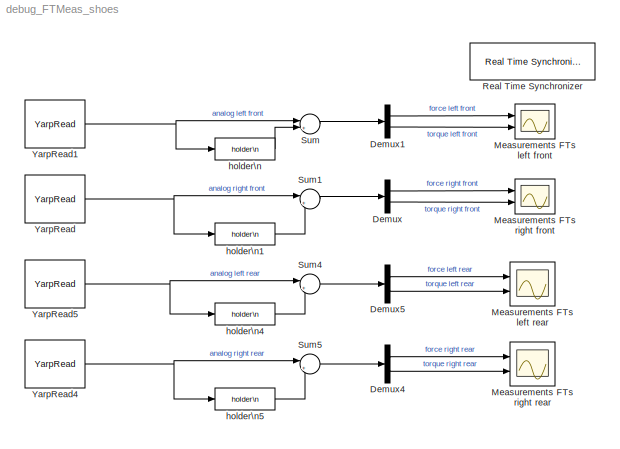
MODEL debug_FTMeas_shoes
KIND model
CONFIG InitFcn = ROBOT_DOF=23;
BLOCK [Demux] Demux
  Outputs = 2
  Ports = [1, 2]
  SID = 18
BLOCK [Demux] Demux1
  Outputs = 2
  Ports = [1, 2]
  SID = 19
BLOCK [Demux] Demux4
  Outputs = 2
  Ports = [1, 2]
  SID = 34
BLOCK [Demux] Demux5
  Outputs = 2
  Ports = [1, 2]
  SID = 35
BLOCK [Scope] Measurements FTs left front
  Floating = off
  NumInputPorts = 2
  Ports = [2]
  SID = 51
  ScopeSpecificationString = Simulink.scopes.TimeScopeBlockCfg('CurrentConfiguration', extmgr.ConfigurationSet(extmgr.Configuration('Core','General UI',true),extmgr.Configuration('Core','Source UI',true),extmgr.Configuration('Sources','WiredSimulink',true,'DataLoggingVariableName','ScopeData2'),extmgr.Configuration('Visuals','Time Domain',true,'SerializedDisplays',{struct('MinYLimReal','-19.48535','MaxYLimReal','29.67908','YL...<+2291ch>
BLOCK [Scope] Measurements FTs left rear
  Floating = off
  NumInputPorts = 2
  Ports = [2]
  SID = 43
  ScopeSpecificationString = Simulink.scopes.TimeScopeBlockCfg('CurrentConfiguration', extmgr.ConfigurationSet(extmgr.Configuration('Core','General UI',true),extmgr.Configuration('Core','Source UI',true),extmgr.Configuration('Sources','WiredSimulink',true,'DataLoggingVariableName','ScopeData1'),extmgr.Configuration('Visuals','Time Domain',true,'SerializedDisplays',{struct('MinYLimReal','-19.48535','MaxYLimReal','29.67908','YL...<+2291ch>
BLOCK [Scope] Measurements FTs right front
  Floating = off
  NumInputPorts = 2
  Ports = [2]
  SID = 50
  ScopeSpecificationString = Simulink.scopes.TimeScopeBlockCfg('CurrentConfiguration', extmgr.ConfigurationSet(extmgr.Configuration('Core','General UI',true),extmgr.Configuration('Core','Source UI',true),extmgr.Configuration('Sources','WiredSimulink',true),extmgr.Configuration('Visuals','Time Domain',true,'SerializedDisplays',{struct('MinYLimReal','-19.48535','MaxYLimReal','29.67908','YLabelReal','','MinYLimMag','0.00000','Ma...<+2252ch>
BLOCK [Scope] Measurements FTs right rear
  Floating = off
  NumInputPorts = 2
  Ports = [2]
  SID = 47
  ScopeSpecificationString = Simulink.scopes.TimeScopeBlockCfg('CurrentConfiguration', extmgr.ConfigurationSet(extmgr.Configuration('Core','General UI',true),extmgr.Configuration('Core','Source UI',true),extmgr.Configuration('Sources','WiredSimulink',true,'DataLoggingVariableName','ScopeData4'),extmgr.Configuration('Visuals','Time Domain',true,'SerializedDisplays',{struct('MinYLimReal','-19.48535','MaxYLimReal','29.67908','YL...<+2291ch>
BLOCK [Reference] Real Time Synchronizer  REF=WBToolboxLibrary/Utilities/Real Time Synchronizer
  MultiThreadCoSim = auto
  Ports = []
  SID = 16
  SourceBlock = WBToolboxLibrary/Utilities/Real Time Synchronizer
  SourceProductName = WholeBodyToolbox
  SourceType = Real Time Synchronizer
  period = 0.01
BLOCK [Sum] Sum
  Inputs = |+-
  Ports = [2, 1]
  SID = 21
BLOCK [Sum] Sum1
  Inputs = |+-
  Ports = [2, 1]
  SID = 23
BLOCK [Sum] Sum4
  Inputs = |+-
  Ports = [2, 1]
  SID = 37
BLOCK [Sum] Sum5
  Inputs = |+-
  Ports = [2, 1]
  SID = 38
BLOCK [Reference] YarpRead  REF=WBToolboxLibrary/Utilities/YarpRead
  MultiThreadCoSim = auto
  Ports = [0, 1]
  SID = 17
  SourceBlock = WBToolboxLibrary/Utilities/YarpRead
  SourceProductName = WholeBodyToolbox
  SourceType = YARP Read
  autoconnect = on
  blocking = off
  errorOnConnection = off
  portName = 'ft/ftShoe_Right_Front/analog:o'
  signalSize = 6
  timeout = 0.5
  timestamp = off
BLOCK [Reference] YarpRead1  REF=WBToolboxLibrary/Utilities/YarpRead
  MultiThreadCoSim = auto
  Ports = [0, 1]
  SID = 20
  SourceBlock = WBToolboxLibrary/Utilities/YarpRead
  SourceProductName = WholeBodyToolbox
  SourceType = YARP Read
  autoconnect = on
  blocking = off
  errorOnConnection = off
  portName = 'ft/ftShoe_Left_Front/analog:o'
  signalSize = 6
  timeout = 0.5
  timestamp = off
BLOCK [Reference] YarpRead4  REF=WBToolboxLibrary/Utilities/YarpRead
  MultiThreadCoSim = auto
  Ports = [0, 1]
  SID = 39
  SourceBlock = WBToolboxLibrary/Utilities/YarpRead
  SourceProductName = WholeBodyToolbox
  SourceType = YARP Read
  autoconnect = on
  blocking = off
  errorOnConnection = off
  portName = 'ft/ftShoe_Right_Rear/analog:o'
  signalSize = 6
  timeout = 0.5
  timestamp = off
BLOCK [Reference] YarpRead5  REF=WBToolboxLibrary/Utilities/YarpRead
  MultiThreadCoSim = auto
  Ports = [0, 1]
  SID = 40
  SourceBlock = WBToolboxLibrary/Utilities/YarpRead
  SourceProductName = WholeBodyToolbox
  SourceType = YARP Read
  autoconnect = on
  blocking = off
  errorOnConnection = off
  portName = 'ft/ftShoe_Left_Rear/analog:o'
  signalSize = 6
  timeout = 0.5
  timestamp = off
BLOCK [Reference] holder\n  REF=WBToolboxLibrary/Utilities/holder\n
  Ports = [1, 1]
  RTWMemSecDataConstants = Inherit from model
  RTWMemSecDataInternal = Inherit from model
  RTWMemSecDataParameters = Inherit from model
  RTWMemSecFuncExecute = Inherit from model
  RTWMemSecFuncInitTerm = Inherit from model
  SID = 22
  SourceBlock = WBToolboxLibrary/Utilities/holder\n
  SourceProductName = WholeBodyToolbox
  SourceType = Holder
BLOCK [Reference] holder\n1  REF=WBToolboxLibrary/Utilities/holder\n
  Ports = [1, 1]
  RTWMemSecDataConstants = Inherit from model
  RTWMemSecDataInternal = Inherit from model
  RTWMemSecDataParameters = Inherit from model
  RTWMemSecFuncExecute = Inherit from model
  RTWMemSecFuncInitTerm = Inherit from model
  SID = 24
  SourceBlock = WBToolboxLibrary/Utilities/holder\n
  SourceProductName = WholeBodyToolbox
  SourceType = Holder
BLOCK [Reference] holder\n4  REF=WBToolboxLibrary/Utilities/holder\n
  Ports = [1, 1]
  RTWMemSecDataConstants = Inherit from model
  RTWMemSecDataInternal = Inherit from model
  RTWMemSecDataParameters = Inherit from model
  RTWMemSecFuncExecute = Inherit from model
  RTWMemSecFuncInitTerm = Inherit from model
  SID = 41
  SourceBlock = WBToolboxLibrary/Utilities/holder\n
  SourceProductName = WholeBodyToolbox
  SourceType = Holder
BLOCK [Reference] holder\n5  REF=WBToolboxLibrary/Utilities/holder\n
  Ports = [1, 1]
  RTWMemSecDataConstants = Inherit from model
  RTWMemSecDataInternal = Inherit from model
  RTWMemSecDataParameters = Inherit from model
  RTWMemSecFuncExecute = Inherit from model
  RTWMemSecFuncInitTerm = Inherit from model
  SID = 42
  SourceBlock = WBToolboxLibrary/Utilities/holder\n
  SourceProductName = WholeBodyToolbox
  SourceType = Holder
LINE Demux1:1 -> Measurements FTs left front:1
LINE Demux1:2 -> Measurements FTs left front:2
LINE Demux4:1 -> Measurements FTs right rear:1
LINE Demux4:2 -> Measurements FTs right rear:2
LINE Demux5:1 -> Measurements FTs left rear:1
LINE Demux5:2 -> Measurements FTs left rear:2
LINE Demux:1 -> Measurements FTs right front:1
LINE Demux:2 -> Measurements FTs right front:2
LINE Sum1:1 -> Demux:1
LINE Sum4:1 -> Demux5:1
LINE Sum5:1 -> Demux4:1
LINE Sum:1 -> Demux1:1
NET YarpRead1:1 -> Sum:1, holder\n:1
NET YarpRead4:1 -> Sum5:1, holder\n5:1
NET YarpRead5:1 -> Sum4:1, holder\n4:1
NET YarpRead:1 -> Sum1:1, holder\n1:1
LINE holder\n1:1 -> Sum1:2
LINE holder\n4:1 -> Sum4:2
LINE holder\n5:1 -> Sum5:2
LINE holder\n:1 -> Sum:2
note: NET lines group one-source signal fan-out (src -> all destinations, sorted); 1:1 wires keep LINE
